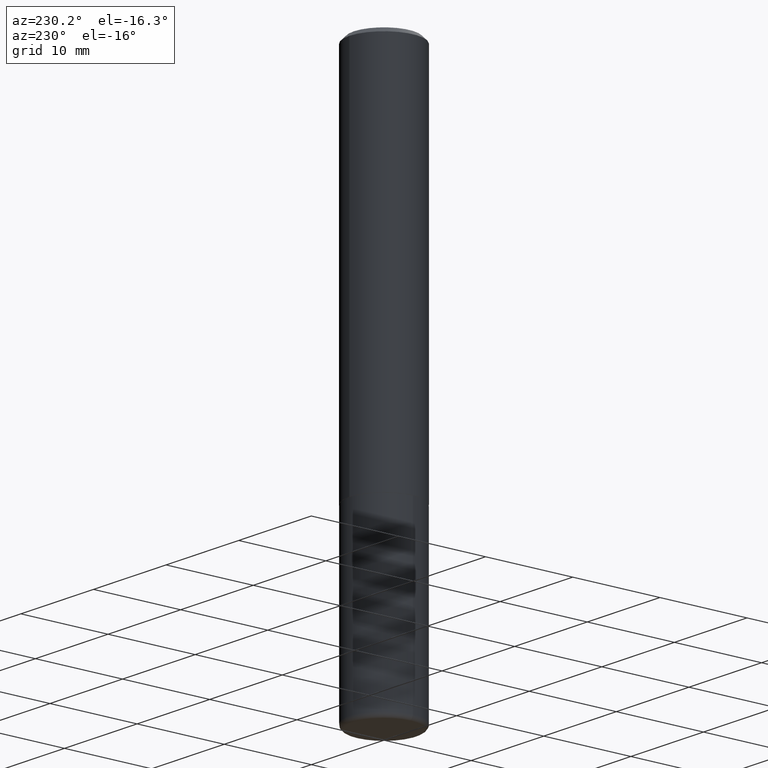
[diagram: clean part render]
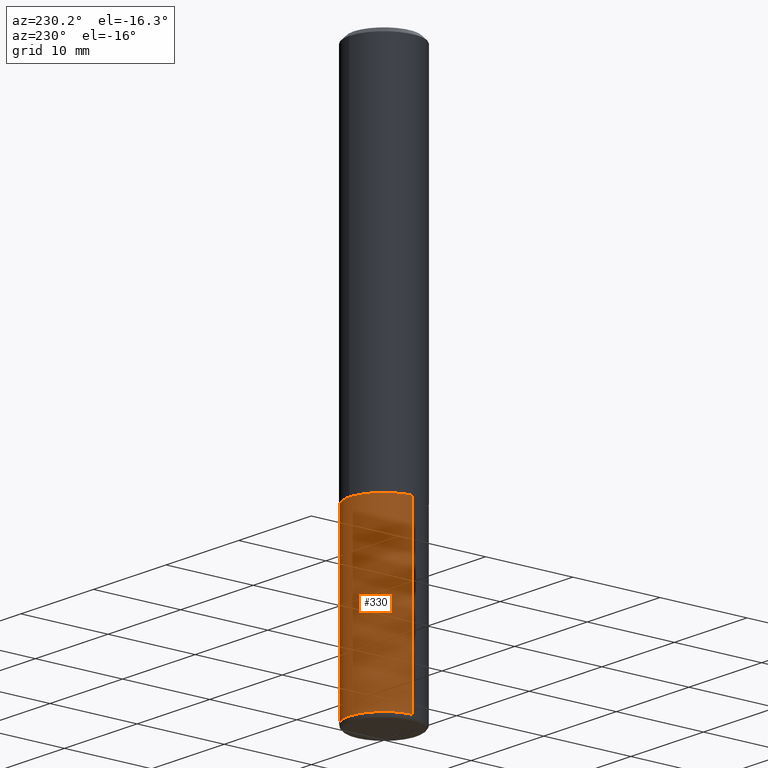
[diagram: same view with one face highlighted and labeled with its STEP entity id]
A machine part, auxiliary view. The second image highlights one B-rep face of the part: STEP entity #330.
In plain terms, the highlighted cylindrical surface (partial cylindrical patch) has radius 3.9688 mm, axis along (-0, 0, 1).
Its self-contained STEP definition (entity closure, byte-faithful):
#2 = CYLINDRICAL_SURFACE ( 'NONE', #387, 0.1562500000000000000 ) ;
#13 = VERTEX_POINT ( 'NONE', #372 ) ;
#17 = ORIENTED_EDGE ( 'NONE', *, *, #183, .T. ) ;
#30 = AXIS2_PLACEMENT_3D ( 'NONE', #57, #294, #188 ) ;
#37 = CARTESIAN_POINT ( 'NONE',  ( 4.127951344840510809E-29, -5.893620499967230340E-15, -1.688000000000000167 ) ) ;
#57 = CARTESIAN_POINT ( 'NONE',  ( 6.064762639339139522E-29, -8.658873720331001644E-15, -2.480000000000000426 ) ) ;
#81 = ORIENTED_EDGE ( 'NONE', *, *, #384, .F. ) ;
#102 = LINE ( 'NONE', #131, #125 ) ;
#122 = CARTESIAN_POINT ( 'NONE',  ( -0.1562500000000000000, 1.110223024625156540E-15, -7.685836078523291160E-30 ) ) ;
#125 = VECTOR ( 'NONE', #262, 39.37007874015748143 ) ;
#131 = CARTESIAN_POINT ( 'NONE',  ( 0.1562500000000000000, -1.091087918388479174E-15, 7.619026212181150377E-30 ) ) ;
#135 = DIRECTION ( 'NONE',  ( -2.445468806185136597E-29, 3.491481338843145583E-15, 1.000000000000000000 ) ) ;
#183 = EDGE_CURVE ( 'NONE', #13, #209, #326, .T. ) ;
#188 = DIRECTION ( 'NONE',  ( 1.000000000000000000, -6.982962677686262766E-15, 0.000000000000000000 ) ) ;
#195 = DIRECTION ( 'NONE',  ( -2.445468806185136597E-29, 3.491481338843145583E-15, 1.000000000000000000 ) ) ;
#206 = ORIENTED_EDGE ( 'NONE', *, *, #346, .F. ) ;
#209 = VERTEX_POINT ( 'NONE', #299 ) ;
#232 = EDGE_LOOP ( 'NONE', ( #253, #17, #81, #206 ) ) ;
#253 = ORIENTED_EDGE ( 'NONE', *, *, #265, .T. ) ;
#262 = DIRECTION ( 'NONE',  ( -2.445468806185136877E-29, 3.491481338843145188E-15, 1.000000000000000000 ) ) ;
#265 = EDGE_CURVE ( 'NONE', #271, #13, #352, .T. ) ;
#268 = VERTEX_POINT ( 'NONE', #292 ) ;
#270 = CARTESIAN_POINT ( 'NONE',  ( 0.000000000000000000, 0.000000000000000000, 0.000000000000000000 ) ) ;
#271 = VERTEX_POINT ( 'NONE', #413 ) ;
#292 = CARTESIAN_POINT ( 'NONE',  ( 0.1562500000000000000, -6.984708418355709513E-15, -1.688000000000000167 ) ) ;
#294 = DIRECTION ( 'NONE',  ( -2.445468806185136597E-29, 3.491481338843145583E-15, 1.000000000000000000 ) ) ;
#296 = VECTOR ( 'NONE', #353, 39.37007874015748143 ) ;
#299 = CARTESIAN_POINT ( 'NONE',  ( -0.1562500000000000000, -6.166024085523959846E-15, -1.688000000000000167 ) ) ;
#301 = DIRECTION ( 'NONE',  ( 1.000000000000000000, -6.982962677686266711E-15, 4.876176775795936353E-29 ) ) ;
#325 = AXIS2_PLACEMENT_3D ( 'NONE', #37, #195, #329 ) ;
#326 = LINE ( 'NONE', #122, #296 ) ;
#329 = DIRECTION ( 'NONE',  ( 1.000000000000000000, -6.982962677686269077E-15, 0.000000000000000000 ) ) ;
#330 = ADVANCED_FACE ( 'NONE', ( #364 ), #2, .T. ) ;
#346 = EDGE_CURVE ( 'NONE', #271, #268, #102, .T. ) ;
#352 = CIRCLE ( 'NONE', #30, 0.1562500000000000000 ) ;
#353 = DIRECTION ( 'NONE',  ( -2.445468806185136877E-29, 3.491481338843145188E-15, 1.000000000000000000 ) ) ;
#364 = FACE_OUTER_BOUND ( 'NONE', #232, .T. ) ;
#367 = CIRCLE ( 'NONE', #325, 0.1562500000000000000 ) ;
#372 = CARTESIAN_POINT ( 'NONE',  ( -0.1562500000000000833, -7.548650695705845104E-15, -2.480000000000000426 ) ) ;
#384 = EDGE_CURVE ( 'NONE', #268, #209, #367, .T. ) ;
#387 = AXIS2_PLACEMENT_3D ( 'NONE', #270, #135, #301 ) ;
#413 = CARTESIAN_POINT ( 'NONE',  ( 0.1562500000000000833, -9.749961638719480029E-15, -2.480000000000000426 ) ) ;